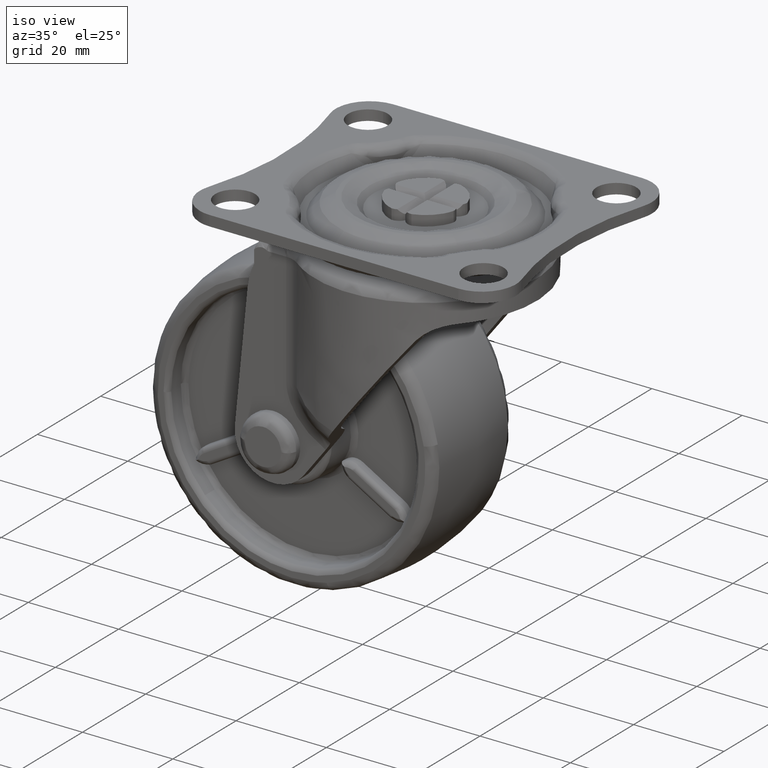
[diagram: clean part render]
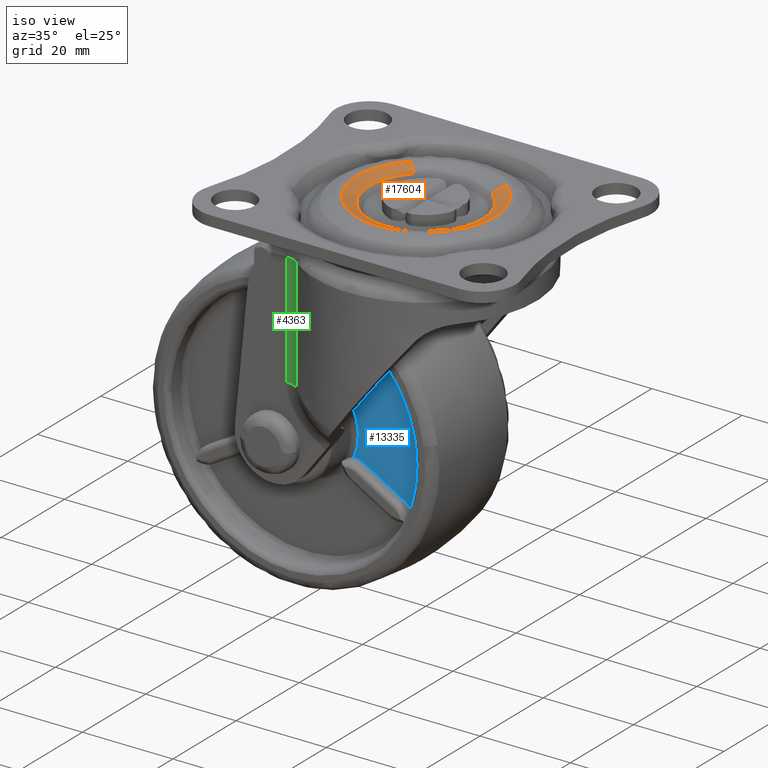
[diagram: same view with three faces highlighted in distinct colors, each labeled with its STEP entity id]
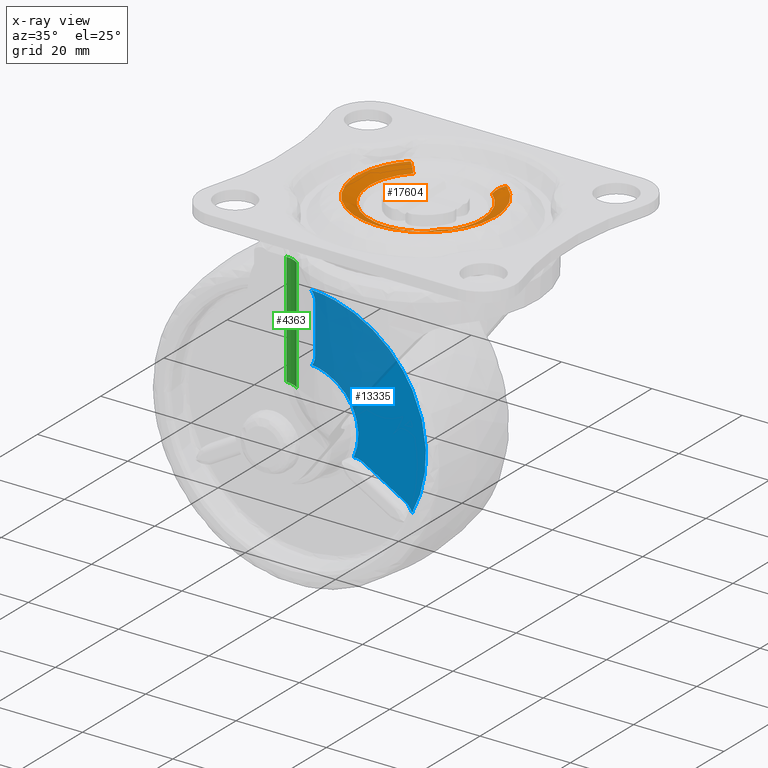
[diagram: x-ray of the same camera — body ghosted, the three highlighted faces saturated]
A machine part, iso view with three faces highlighted in distinct colors.
The next image is the same camera in x-ray (body ghosted, the three faces saturated) — at least one of them is partly hidden behind the body in this view.
Their STEP definitions:

[orange] entity #17604 — the highlighted face is a freeform B-spline surface patch.
#14793=CARTESIAN_POINT('',(8.640094305947994,-9.072498638608266,-1.171572875253780));
#14794=VERTEX_POINT('',#14793);
#14795=CARTESIAN_POINT('',(12.528426124746201,0.0,-1.171572875253804));
#14796=VERTEX_POINT('',#14795);
#14797=CARTESIAN_POINT('',(8.640094305947994,-9.072498638608266,-1.171572875253779));
#14798=CARTESIAN_POINT('',(12.528426124746204,-5.369488591927745,-1.171572875253804));
#14799=CARTESIAN_POINT('',(12.528426124746201,0.0,-1.171572875253804));
#14807=(BOUNDED_CURVE()B_SPLINE_CURVE(2,(#14797,#14798,#14799),.UNSPECIFIED.,.F.,.U.)B_SPLINE_CURVE_WITH_KNOTS((3,3),(0.371317023849627,0.500000000000000),.UNSPECIFIED.)CURVE()GEOMETRIC_REPRESENTATION_ITEM()RATIONAL_B_SPLINE_CURVE((0.853680523245770,0.849238515635290,1.0))REPRESENTATION_ITEM(''));
#14808=EDGE_CURVE('',#14794,#14796,#14807,.T.);
#14810=CARTESIAN_POINT('',(7.714923052378885,9.871242245810642,-1.171572874600066));
#14811=VERTEX_POINT('',#14810);
#14812=CARTESIAN_POINT('',(12.528426124746201,0.0,-1.171572875253804));
#14813=CARTESIAN_POINT('',(12.528426124746201,6.109222745180911,-1.171572875253804));
#14814=CARTESIAN_POINT('',(7.714923052378885,9.871242245810642,-1.171572874600066));
#14822=(BOUNDED_CURVE()B_SPLINE_CURVE(2,(#14812,#14813,#14814),.UNSPECIFIED.,.F.,.U.)B_SPLINE_CURVE_WITH_KNOTS((3,3),(0.500000000000000,0.643432082113841),.UNSPECIFIED.)CURVE()GEOMETRIC_REPRESENTATION_ITEM()RATIONAL_B_SPLINE_CURVE((1.0,0.831958863154246,0.856737647417000))REPRESENTATION_ITEM(''));
#14823=EDGE_CURVE('',#14796,#14811,#14822,.T.);
#14825=CARTESIAN_POINT('',(-8.914422167662936,8.803098238801979,-1.171572874371984));
#14826=VERTEX_POINT('',#14825);
#14842=CARTESIAN_POINT('',(-12.528426124746201,0.0,-1.171572875253804));
#14843=VERTEX_POINT('',#14842);
#14844=CARTESIAN_POINT('',(-8.914422167662936,8.803098238801979,-1.171572874371984));
#14845=CARTESIAN_POINT('',(-12.528426124746204,5.143391607553470,-1.171572875253805));
#14846=CARTESIAN_POINT('',(-12.528426124746201,0.0,-1.171572875253804));
#14854=(BOUNDED_CURVE()B_SPLINE_CURVE(2,(#14844,#14845,#14846),.UNSPECIFIED.,.F.,.U.)B_SPLINE_CURVE_WITH_KNOTS((3,3),(0.875948062567892,1.0),.UNSPECIFIED.)CURVE()GEOMETRIC_REPRESENTATION_ITEM()RATIONAL_B_SPLINE_CURVE((0.853561814883002,0.854664114981860,1.0))REPRESENTATION_ITEM(''));
#14855=EDGE_CURVE('',#14826,#14843,#14854,.T.);
#14857=CARTESIAN_POINT('',(0.109329755381197,-12.527949080676910,-1.171572875244952));
#14858=VERTEX_POINT('',#14857);
#14859=CARTESIAN_POINT('',(-12.528426124746201,0.0,-1.171572875253804));
#14860=CARTESIAN_POINT('',(-12.528426124746201,-12.528426124746201,-1.171572875253804));
#14861=CARTESIAN_POINT('',(0.0,-12.528426124746201,-1.171572875253804));
#14862=CARTESIAN_POINT('',(0.054665918478272,-12.528426124746197,-1.171572875253804));
#14863=CARTESIAN_POINT('',(0.109329755381197,-12.527949080676901,-1.171572875244952));
#14871=(BOUNDED_CURVE()B_SPLINE_CURVE(2,(#14859,#14860,#14861,#14862,#14863),.UNSPECIFIED.,.F.,.U.)B_SPLINE_CURVE_WITH_KNOTS((3,2,3),(0.0,0.250000000000000,0.251539894336808),.UNSPECIFIED.)CURVE()GEOMETRIC_REPRESENTATION_ITEM()RATIONAL_B_SPLINE_CURVE((1.0,0.707106781186547,1.0,0.998195901564239,0.996414028096192))REPRESENTATION_ITEM(''));
#14872=EDGE_CURVE('',#14843,#14858,#14871,.T.);
#14952=CARTESIAN_POINT('',(0.109329755381197,-12.527949080676906,-1.171572875244952));
#14953=CARTESIAN_POINT('',(5.057050529425234,-12.484770975556218,-1.171572875253804));
#14954=CARTESIAN_POINT('',(8.640094305947994,-9.072498638608266,-1.171572875253779));
#14962=(BOUNDED_CURVE()B_SPLINE_CURVE(2,(#14952,#14953,#14954),.UNSPECIFIED.,.F.,.U.)B_SPLINE_CURVE_WITH_KNOTS((3,3),(0.251539894336808,0.371317023849627),.UNSPECIFIED.)CURVE()GEOMETRIC_REPRESENTATION_ITEM()RATIONAL_B_SPLINE_CURVE((0.996414028096191,0.857815109939162,0.853680523245770))REPRESENTATION_ITEM(''));
#14963=EDGE_CURVE('',#14858,#14794,#14962,.T.);
#17487=CARTESIAN_POINT('',(7.649918428567213,9.788066570144913,-1.281232801059947));
#17488=CARTESIAN_POINT('',(8.216899746218276,9.344939135378397,-1.281232801059946));
#17489=CARTESIAN_POINT('',(8.728923577279234,8.839309493808852,-1.281232801059946));
#17490=CARTESIAN_POINT('',(17.568233071088091,0.110385916529621,-1.281232801059947));
#17491=CARTESIAN_POINT('',(8.839309493808857,-8.728923577279234,-1.281232801059946));
#17492=CARTESIAN_POINT('',(0.110385916529622,-17.568233071088091,-1.281232801059947));
#17493=CARTESIAN_POINT('',(-8.728923577279234,-8.839309493808857,-1.281232801059946));
#17494=CARTESIAN_POINT('',(-17.568233071088091,-0.110385916529623,-1.281232801059947));
#17495=CARTESIAN_POINT('',(-8.839309493808857,8.728923577279234,-1.281232801059946));
#17496=CARTESIAN_POINT('',(8.419322164447479,10.772518241941984,0.067127461632298));
#17497=CARTESIAN_POINT('',(9.043328605705876,10.284822501387113,0.067127461632299));
#17498=CARTESIAN_POINT('',(9.606850116403113,9.728338286814198,0.067127461632298));
#17499=CARTESIAN_POINT('',(19.335188403217312,0.121488170411087,0.067127461632298));
#17500=CARTESIAN_POINT('',(9.728338286814202,-9.606850116403113,0.067127461632298));
#17501=CARTESIAN_POINT('',(0.121488170411088,-19.335188403217312,0.067127461632298));
#17502=CARTESIAN_POINT('',(-9.606850116403111,-9.728338286814202,0.067127461632298));
#17503=CARTESIAN_POINT('',(-19.335188403217312,-0.121488170411090,0.067127461632298));
#17504=CARTESIAN_POINT('',(-9.728338286814202,9.606850116403111,0.067127461632298));
#17505=CARTESIAN_POINT('',(9.550489556317830,12.219846319619000,-0.002903731668074));
#17506=CARTESIAN_POINT('',(10.258333594580074,11.666626834029255,-0.002903731668073));
#17507=CARTESIAN_POINT('',(10.897566325856324,11.035376885906723,-0.002903731668074));
#17508=CARTESIAN_POINT('',(21.932943211763046,0.137810560050399,-0.002903731668074));
#17509=CARTESIAN_POINT('',(11.035376885906723,-10.897566325856324,-0.002903731668074));
#17510=CARTESIAN_POINT('',(0.137810560050401,-21.932943211763046,-0.002903731668074));
#17511=CARTESIAN_POINT('',(-10.897566325856324,-11.035376885906723,-0.002903731668074));
#17512=CARTESIAN_POINT('',(-21.932943211763046,-0.137810560050402,-0.002903731668074));
#17513=CARTESIAN_POINT('',(-11.035376885906723,10.897566325856324,-0.002903731668074));
#17521=(BOUNDED_SURFACE()B_SPLINE_SURFACE(2,2,((#17487,#17496,#17505),(#17488,#17497,#17506),(#17489,#17498,#17507),(#17490,#17499,#17508),(#17491,#17500,#17509),(#17492,#17501,#17510),(#17493,#17502,#17511),(#17494,#17503,#17512),(#17495,#17504,#17513)),.UNSPECIFIED.,.F.,.F.,.U.)B_SPLINE_SURFACE_WITH_KNOTS((3,2,2,2,3),(3,3),(0.0,2.055721925049148,27.752270494301889,53.448819063554637,79.145367632807378),(0.0,3.500539500548851),.UNSPECIFIED.)GEOMETRIC_REPRESENTATION_ITEM()RATIONAL_B_SPLINE_SURFACE(((0.891241322179567,0.809265860626970,0.890026721542837),(0.909573467767526,0.825911834289970,0.908333883733875),(0.931397446645959,0.845728466003330,0.930128120478521),(0.658597450503193,0.598020333353451,0.657699901362660),(0.931397446645959,0.845728466003330,0.930128120478521),(0.658597450503193,0.598020333353451,0.657699901362660),(0.931397446645959,0.845728466003330,0.930128120478521),(0.658597450503193,0.598020333353451,0.657699901362660),(0.931397446645959,0.845728466003330,0.930128120478521)))REPRESENTATION_ITEM('')SURFACE());
#17522=CARTESIAN_POINT('',(9.456650017814120,12.099781491809130,-7.543753E-016));
#17523=VERTEX_POINT('',#17522);
#17524=CARTESIAN_POINT('',(15.356853249492399,0.0,0.0));
#17525=VERTEX_POINT('',#17524);
#17526=CARTESIAN_POINT('',(9.456650017814120,12.099781491809122,-7.543753E-016));
#17527=CARTESIAN_POINT('',(15.356853249492394,7.488445574273531,0.0));
#17528=CARTESIAN_POINT('',(15.356853249492399,0.0,0.0));
#17536=(BOUNDED_CURVE()B_SPLINE_CURVE(2,(#17526,#17527,#17528),.UNSPECIFIED.,.F.,.U.)B_SPLINE_CURVE_WITH_KNOTS((3,3),(0.356567917885823,0.500000000000000),.UNSPECIFIED.)CURVE()GEOMETRIC_REPRESENTATION_ITEM()RATIONAL_B_SPLINE_CURVE((0.856737647417116,0.831958863153853,1.0))REPRESENTATION_ITEM(''));
#17537=EDGE_CURVE('',#17523,#17525,#17536,.T.);
#17538=ORIENTED_EDGE('',*,*,#17537,.F.);
#17539=CARTESIAN_POINT('',(7.714923052378885,9.871242245810642,-1.171572874600066));
#17540=CARTESIAN_POINT('',(8.436369983664246,10.794333426176873,-4.718771E-010));
#17541=CARTESIAN_POINT('',(9.456650017814120,12.099781491809127,-7.543753E-016));
#17549=(BOUNDED_CURVE()B_SPLINE_CURVE(2,(#17539,#17540,#17541),.UNSPECIFIED.,.F.,.U.)B_SPLINE_CURVE_WITH_KNOTS((3,3),(-1.565382961457688,-0.443824321102480),.UNSPECIFIED.)CURVE()GEOMETRIC_REPRESENTATION_ITEM()RATIONAL_B_SPLINE_CURVE((0.884131369699685,0.816320596727751,0.883027068739207))REPRESENTATION_ITEM(''));
#17550=EDGE_CURVE('',#14811,#17523,#17549,.T.);
#17551=ORIENTED_EDGE('',*,*,#17550,.F.);
#17552=ORIENTED_EDGE('',*,*,#14823,.F.);
#17553=ORIENTED_EDGE('',*,*,#14808,.F.);
#17554=ORIENTED_EDGE('',*,*,#14963,.F.);
#17555=ORIENTED_EDGE('',*,*,#14872,.F.);
#17556=ORIENTED_EDGE('',*,*,#14855,.F.);
#17557=CARTESIAN_POINT('',(-10.926948976580571,10.790492471863670,-7.218513E-016));
#17558=VERTEX_POINT('',#17557);
#17559=CARTESIAN_POINT('',(-8.914422167662936,8.803098238801979,-1.171572874371984));
#17560=CARTESIAN_POINT('',(-9.748038067188537,9.626303884539325,-1.160760E-010));
#17561=CARTESIAN_POINT('',(-10.926948976580571,10.790492471863672,-7.218513E-016));
#17569=(BOUNDED_CURVE()B_SPLINE_CURVE(2,(#17559,#17560,#17561),.UNSPECIFIED.,.F.,.U.)B_SPLINE_CURVE_WITH_KNOTS((3,3),(-1.565382961221205,-0.443824320787992),.UNSPECIFIED.)CURVE()GEOMETRIC_REPRESENTATION_ITEM()RATIONAL_B_SPLINE_CURVE((0.923967181531341,0.853101096571818,0.922813124770060))REPRESENTATION_ITEM(''));
#17570=EDGE_CURVE('',#14826,#17558,#17569,.T.);
#17571=ORIENTED_EDGE('',*,*,#17570,.T.);
#17572=CARTESIAN_POINT('',(-15.356853249492399,0.0,0.0));
#17573=VERTEX_POINT('',#17572);
#17574=CARTESIAN_POINT('',(-15.356853249492399,0.0,0.0));
#17575=CARTESIAN_POINT('',(-15.356853249492397,6.304567655614436,0.0));
#17576=CARTESIAN_POINT('',(-10.926948976580567,10.790492471863674,-7.218513E-016));
#17584=(BOUNDED_CURVE()B_SPLINE_CURVE(2,(#17574,#17575,#17576),.UNSPECIFIED.,.F.,.U.)B_SPLINE_CURVE_WITH_KNOTS((3,3),(0.0,0.124051937432054),.UNSPECIFIED.)CURVE()GEOMETRIC_REPRESENTATION_ITEM()RATIONAL_B_SPLINE_CURVE((1.0,0.854664114981923,0.853561814883003))REPRESENTATION_ITEM(''));
#17585=EDGE_CURVE('',#17573,#17558,#17584,.T.);
#17586=ORIENTED_EDGE('',*,*,#17585,.F.);
#17587=CARTESIAN_POINT('',(15.356853249492399,0.0,0.0));
#17588=CARTESIAN_POINT('',(15.356853249492394,-15.356853249492394,0.0));
#17589=CARTESIAN_POINT('',(0.0,-15.356853249492399,0.0));
#17590=CARTESIAN_POINT('',(-15.356853249492394,-15.356853249492394,0.0));
#17591=CARTESIAN_POINT('',(-15.356853249492399,0.0,0.0));
#17599=(BOUNDED_CURVE()B_SPLINE_CURVE(2,(#17587,#17588,#17589,#17590,#17591),.UNSPECIFIED.,.F.,.U.)B_SPLINE_CURVE_WITH_KNOTS((3,2,3),(0.500000000000000,0.750000000000000,1.0),.UNSPECIFIED.)CURVE()GEOMETRIC_REPRESENTATION_ITEM()RATIONAL_B_SPLINE_CURVE((1.0,0.707106781186548,1.0,0.707106781186548,1.0))REPRESENTATION_ITEM(''));
#17600=EDGE_CURVE('',#17525,#17573,#17599,.T.);
#17601=ORIENTED_EDGE('',*,*,#17600,.F.);
#17602=EDGE_LOOP('',(#17538,#17551,#17552,#17553,#17554,#17555,#17556,#17571,#17586,#17601));
#17603=FACE_OUTER_BOUND('',#17602,.T.);
#17604=ADVANCED_FACE('',(#17603),#17521,.T.);

[blue] entity #13335 — the highlighted face is a freeform B-spline surface patch.
#8873=CARTESIAN_POINT('',(0.873643242212800,-7.500000000000000,26.285484490215051));
#8874=VERTEX_POINT('',#8873);
#8890=CARTESIAN_POINT('',(26.273778849892562,-7.500000000000001,1.174092669235226));
#8891=VERTEX_POINT('',#8890);
#8892=CARTESIAN_POINT('',(26.273778849892565,-7.500000000000001,1.174092669235226));
#8893=CARTESIAN_POINT('',(25.987117292722953,-7.500000000000001,7.588988129173094));
#8894=CARTESIAN_POINT('',(22.776469687993590,-7.500000000000000,13.149995283341759));
#8895=CARTESIAN_POINT('',(15.472841936848500,-7.500000000000000,25.800255036444177));
#8896=CARTESIAN_POINT('',(0.873643242212806,-7.500000000000000,26.285484490215069));
#8904=(BOUNDED_CURVE()B_SPLINE_CURVE(2,(#8892,#8893,#8894,#8895,#8896),.UNSPECIFIED.,.F.,.U.)B_SPLINE_CURVE_WITH_KNOTS((3,2,3),(0.263532741726478,0.500000000000000,1.0),.UNSPECIFIED.)CURVE()GEOMETRIC_REPRESENTATION_ITEM()RATIONAL_B_SPLINE_CURVE((0.937290092374145,0.940510325951318,1.0,0.874211604424595,1.0))REPRESENTATION_ITEM(''));
#8905=EDGE_CURVE('',#8891,#8874,#8904,.T.);
#8954=CARTESIAN_POINT('',(23.200714354263798,-7.500000000000000,-12.386153593907141));
#8955=VERTEX_POINT('',#8954);
#8956=CARTESIAN_POINT('',(23.200714354263798,-7.500000000000000,-12.386153593907141));
#8957=CARTESIAN_POINT('',(26.595580722285607,-7.499999999999999,-6.027171826224595));
#8958=CARTESIAN_POINT('',(26.273778849892565,-7.500000000000001,1.174092669235226));
#8966=(BOUNDED_CURVE()B_SPLINE_CURVE(2,(#8956,#8957,#8958),.UNSPECIFIED.,.F.,.U.)B_SPLINE_CURVE_WITH_KNOTS((3,3),(0.0,0.263532741726478),.UNSPECIFIED.)CURVE()GEOMETRIC_REPRESENTATION_ITEM()RATIONAL_B_SPLINE_CURVE((1.0,0.933701278473278,0.937290092374145))REPRESENTATION_ITEM(''));
#8967=EDGE_CURVE('',#8955,#8891,#8966,.T.);
#12634=CARTESIAN_POINT('',(12.420068734748501,-7.500000000000000,-5.150002082082101));
#12635=VERTEX_POINT('',#12634);
#12641=CARTESIAN_POINT('',(10.310409565786600,-7.500000000000000,-4.699615261697320));
#12642=VERTEX_POINT('',#12641);
#12643=CARTESIAN_POINT('',(12.420068734748501,-7.500000000000000,-5.150002082082101));
#12644=CARTESIAN_POINT('',(11.438188039745581,-7.500000000000000,-4.583110628577979));
#12645=CARTESIAN_POINT('',(10.310409565786600,-7.500000000000000,-4.699615261697320));
#12653=(BOUNDED_CURVE()B_SPLINE_CURVE(2,(#12643,#12644,#12645),.UNSPECIFIED.,.F.,.U.)CURVE()GEOMETRIC_REPRESENTATION_ITEM()QUASI_UNIFORM_CURVE()RATIONAL_B_SPLINE_CURVE((1.0,0.951330903352749,1.0))REPRESENTATION_ITEM(''));
#12654=EDGE_CURVE('',#12635,#12642,#12653,.T.);
#12694=CARTESIAN_POINT('',(21.632688230496601,-7.500000000000000,-10.468918151598400));
#12695=VERTEX_POINT('',#12694);
#12701=CARTESIAN_POINT('',(21.632688230496601,-7.500000000000000,-10.468918151598400));
#12702=CARTESIAN_POINT('',(12.420068734748501,-7.500000000000000,-5.150002082082101));
#12703=QUASI_UNIFORM_CURVE('',1,(#12701,#12702),.UNSPECIFIED.,.F.,.U.);
#12704=EDGE_CURVE('',#12695,#12635,#12703,.T.);
#12822=CARTESIAN_POINT('',(23.200714354263809,-7.500000000000000,-12.386153593907141));
#12823=CARTESIAN_POINT('',(22.779345710556079,-7.500000000000000,-11.130944275920308));
#12824=CARTESIAN_POINT('',(21.632688230496591,-7.500000000000000,-10.468918151598411));
#12832=(BOUNDED_CURVE()B_SPLINE_CURVE(2,(#12822,#12823,#12824),.UNSPECIFIED.,.F.,.U.)CURVE()GEOMETRIC_REPRESENTATION_ITEM()QUASI_UNIFORM_CURVE()RATIONAL_B_SPLINE_CURVE((1.0,0.935310734505054,1.0))REPRESENTATION_ITEM(''));
#12833=EDGE_CURVE('',#8955,#12695,#12832,.T.);
#12986=CARTESIAN_POINT('',(1.749999525340205,-7.500000000000000,23.963305246660848));
#12987=VERTEX_POINT('',#12986);
#12994=CARTESIAN_POINT('',(1.749998339939590,-7.500000000000000,13.327116697825780));
#12995=VERTEX_POINT('',#12994);
#13001=CARTESIAN_POINT('',(1.749998339939590,-7.500000000000000,13.327116697825780));
#13002=CARTESIAN_POINT('',(1.749999525340205,-7.500000000000000,23.963305246660848));
#13003=QUASI_UNIFORM_CURVE('',1,(#13001,#13002),.UNSPECIFIED.,.F.,.U.);
#13004=EDGE_CURVE('',#12995,#12987,#13003,.T.);
#13027=CARTESIAN_POINT('',(1.085216932304644,-7.500000000000000,11.278884396609500));
#13028=VERTEX_POINT('',#13027);
#13052=CARTESIAN_POINT('',(1.085216932304645,-7.500000000000000,11.278884396609500));
#13053=CARTESIAN_POINT('',(1.748713697084226,-7.500000000000001,12.195535611159288));
#13054=CARTESIAN_POINT('',(1.749998339939592,-7.500000000000000,13.327116697825780));
#13062=(BOUNDED_CURVE()B_SPLINE_CURVE(2,(#13052,#13053,#13054),.UNSPECIFIED.,.F.,.U.)CURVE()GEOMETRIC_REPRESENTATION_ITEM()QUASI_UNIFORM_CURVE()RATIONAL_B_SPLINE_CURVE((1.0,0.951505896904064,1.0))REPRESENTATION_ITEM(''));
#13063=EDGE_CURVE('',#13028,#12995,#13062,.T.);
#13123=CARTESIAN_POINT('',(1.749999525340210,-7.500000000000000,23.963305246660848));
#13124=CARTESIAN_POINT('',(1.752124950759583,-7.500000000000000,25.290558956968187));
#13125=CARTESIAN_POINT('',(0.873643242212801,-7.500000000000000,26.285484490215051));
#13133=(BOUNDED_CURVE()B_SPLINE_CURVE(2,(#13123,#13124,#13125),.UNSPECIFIED.,.F.,.U.)CURVE()GEOMETRIC_REPRESENTATION_ITEM()QUASI_UNIFORM_CURVE()RATIONAL_B_SPLINE_CURVE((1.0,0.935026827355271,1.0))REPRESENTATION_ITEM(''));
#13134=EDGE_CURVE('',#12987,#8874,#13133,.T.);
#13166=CARTESIAN_POINT('',(10.310409565786591,-7.500000000000000,-4.699615261697315));
#13167=CARTESIAN_POINT('',(12.731083415245887,-7.500000000000000,0.611061766809212));
#13168=CARTESIAN_POINT('',(9.812909285916565,-7.500000000000000,5.665486772433100));
#13169=CARTESIAN_POINT('',(6.894735156587237,-7.500000000000000,10.719911778056989));
#13170=CARTESIAN_POINT('',(1.085216932304645,-7.500000000000000,11.278884396609500));
#13178=(BOUNDED_CURVE()B_SPLINE_CURVE(2,(#13166,#13167,#13168,#13169,#13170),.UNSPECIFIED.,.F.,.U.)B_SPLINE_CURVE_WITH_KNOTS((3,2,3),(0.0,0.500000000000000,1.0),.UNSPECIFIED.)CURVE()GEOMETRIC_REPRESENTATION_ITEM()RATIONAL_B_SPLINE_CURVE((1.0,0.889000744394924,1.0,0.889000744394924,1.0))REPRESENTATION_ITEM(''));
#13179=EDGE_CURVE('',#12642,#13028,#13178,.T.);
#13319=CARTESIAN_POINT('',(-0.396351689061694,-7.500000000000000,28.217132737563819));
#13320=CARTESIAN_POINT('',(-0.396351689061694,-7.500000000000000,-14.317802878510070));
#13321=CARTESIAN_POINT('',(27.568963791457939,-7.500000000000000,28.217132737563819));
#13322=CARTESIAN_POINT('',(27.568963791457939,-7.500000000000000,-14.317802878510070));
#13323=B_SPLINE_SURFACE_WITH_KNOTS('',1,1,((#13319,#13321),(#13320,#13322)),.UNSPECIFIED.,.F.,.F.,.U.,(2,2),(2,2),(0.0,42.534935616073881),(0.0,27.965315480519639),.UNSPECIFIED.);
#13324=ORIENTED_EDGE('',*,*,#12833,.F.);
#13325=ORIENTED_EDGE('',*,*,#8967,.T.);
#13326=ORIENTED_EDGE('',*,*,#8905,.T.);
#13327=ORIENTED_EDGE('',*,*,#13134,.F.);
#13328=ORIENTED_EDGE('',*,*,#13004,.F.);
#13329=ORIENTED_EDGE('',*,*,#13063,.F.);
#13330=ORIENTED_EDGE('',*,*,#13179,.F.);
#13331=ORIENTED_EDGE('',*,*,#12654,.F.);
#13332=ORIENTED_EDGE('',*,*,#12704,.F.);
#13333=EDGE_LOOP('',(#13324,#13325,#13326,#13327,#13328,#13329,#13330,#13331,#13332));
#13334=FACE_OUTER_BOUND('',#13333,.T.);
#13335=ADVANCED_FACE('',(#13334),#13323,.T.);

[green] entity #4363 — the highlighted face is a freeform B-spline surface patch.
#2789=CARTESIAN_POINT('',(-18.093088741284351,-18.300003000000000,-9.900002000000001));
#2790=VERTEX_POINT('',#2789);
#2852=CARTESIAN_POINT('',(-15.026463530897200,-19.350849949152551,-9.900002000000001));
#2853=VERTEX_POINT('',#2852);
#2878=CARTESIAN_POINT('',(-15.026463530897169,-19.350849949152540,-9.900001999999963));
#2879=CARTESIAN_POINT('',(-15.461043840493920,-19.013386468707981,-9.900001999999965));
#2880=CARTESIAN_POINT('',(-15.951742690851081,-18.748368267465239,-9.900001999999963));
#2881=CARTESIAN_POINT('',(-16.992757835029089,-18.391641405449089,-9.900001999999963));
#2882=CARTESIAN_POINT('',(-17.542869106844641,-18.300003000000000,-9.900001999999963));
#2883=CARTESIAN_POINT('',(-18.093088741284340,-18.300003000000000,-9.900001999999963));
#2884=B_SPLINE_CURVE_WITH_KNOTS('',3,(#2878,#2879,#2880,#2881,#2882,#2883),.UNSPECIFIED.,.F.,.U.,(4,2,4),(0.0,0.500000000000000,1.0),.UNSPECIFIED.);
#2885=EDGE_CURVE('',#2853,#2790,#2884,.T.);
#4239=CARTESIAN_POINT('',(-15.026464382357700,-19.350850620415049,-34.913852239508202));
#4240=VERTEX_POINT('',#4239);
#4276=CARTESIAN_POINT('',(-18.093088741284351,-18.300003000000000,-34.913851705238052));
#4277=VERTEX_POINT('',#4276);
#4278=CARTESIAN_POINT('',(-15.026464382357700,-19.350850620415049,-34.913852239508202));
#4279=CARTESIAN_POINT('',(-16.379728630826094,-18.300003415611148,-34.913851972373124));
#4280=CARTESIAN_POINT('',(-18.093088741284351,-18.300003000000000,-34.913851705238052));
#4288=(BOUNDED_CURVE()B_SPLINE_CURVE(2,(#4278,#4279,#4280),.UNSPECIFIED.,.F.,.U.)CURVE()GEOMETRIC_REPRESENTATION_ITEM()QUASI_UNIFORM_CURVE()RATIONAL_B_SPLINE_CURVE((1.0,0.945999641163106,1.0))REPRESENTATION_ITEM(''));
#4289=EDGE_CURVE('',#4240,#4277,#4288,.T.);
#4335=CARTESIAN_POINT('',(-18.223973482823720,-18.301716375122218,-35.539198495495910));
#4336=CARTESIAN_POINT('',(-18.223973482823720,-18.301716375122218,-9.259022087612564));
#4337=CARTESIAN_POINT('',(-16.346040129498562,-18.252540959619878,-35.539198495495903));
#4338=CARTESIAN_POINT('',(-16.346040129498562,-18.252540959619878,-9.259022087612564));
#4339=CARTESIAN_POINT('',(-14.900327604681051,-19.452110547683333,-35.539198495495910));
#4340=CARTESIAN_POINT('',(-14.900327604681051,-19.452110547683333,-9.259022087612562));
#4348=(BOUNDED_SURFACE()B_SPLINE_SURFACE(1,2,((#4335,#4337,#4339),(#4336,#4338,#4340)),.UNSPECIFIED.,.F.,.F.,.U.)B_SPLINE_SURFACE_WITH_KNOTS((2,2),(3,3),(0.0,26.280176407883349),(0.0,3.633167318409418),.UNSPECIFIED.)GEOMETRIC_REPRESENTATION_ITEM()RATIONAL_B_SPLINE_SURFACE(((1.0,0.934898583121872,0.997416006776084),(1.0,0.934898583121872,0.997416006776084)))REPRESENTATION_ITEM('')SURFACE());
#4349=CARTESIAN_POINT('',(-15.026463530897200,-19.350849949152551,-9.900002000000001));
#4350=CARTESIAN_POINT('',(-15.026464382357700,-19.350850620415049,-34.913852239508202));
#4351=QUASI_UNIFORM_CURVE('',1,(#4349,#4350),.UNSPECIFIED.,.F.,.U.);
#4352=EDGE_CURVE('',#2853,#4240,#4351,.T.);
#4353=ORIENTED_EDGE('',*,*,#4352,.F.);
#4354=ORIENTED_EDGE('',*,*,#2885,.T.);
#4355=CARTESIAN_POINT('',(-18.093088741284351,-18.300003000000000,-34.913851705238052));
#4356=CARTESIAN_POINT('',(-18.093088741284351,-18.300003000000000,-9.900002000000001));
#4357=QUASI_UNIFORM_CURVE('',1,(#4355,#4356),.UNSPECIFIED.,.F.,.U.);
#4358=EDGE_CURVE('',#4277,#2790,#4357,.T.);
#4359=ORIENTED_EDGE('',*,*,#4358,.F.);
#4360=ORIENTED_EDGE('',*,*,#4289,.F.);
#4361=EDGE_LOOP('',(#4353,#4354,#4359,#4360));
#4362=FACE_OUTER_BOUND('',#4361,.T.);
#4363=ADVANCED_FACE('',(#4362),#4348,.F.);